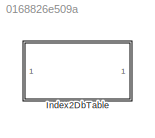
MODEL slx_0168826e509a
KIND library
CONFIG AbsTol = auto
CONFIG EnableMultiTasking = off
CONFIG FixedStep = auto
CONFIG MaxStep = auto
CONFIG MinStep = auto
CONFIG RelTol = 1e-3
CONFIG SampleTimeConstraint = Unconstrained
CONFIG SolverName = VariableStepAuto
CONFIG StartTime = 0.0
CONFIG StopTime = 10.0
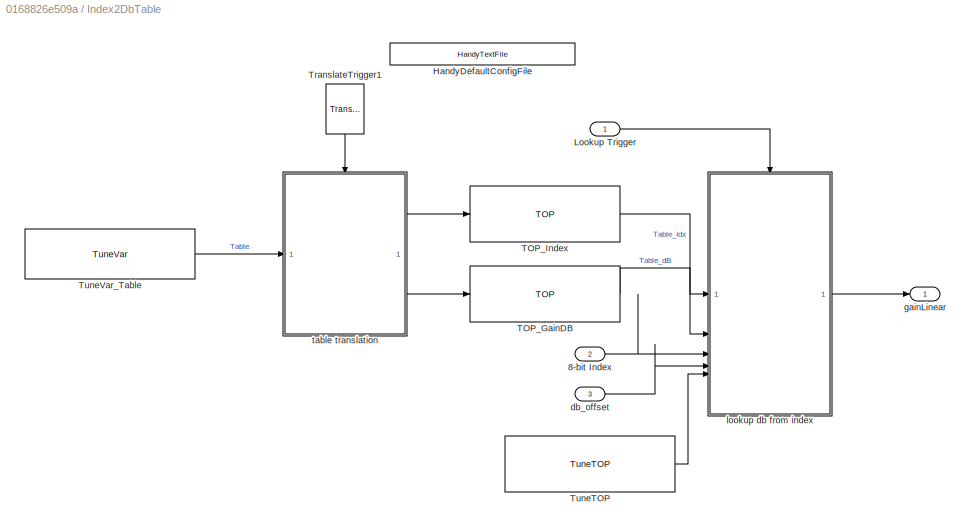
BLOCK [SubSystem] Index2DbTable
BLOCK [Inport] Index2DbTable/8-bit Index
  Port = 2
BLOCK [Reference] Index2DbTable/HandyDefaultConfigFile  REF=HandyTextFile/HandyTextFile
  SourceBlock = HandyTextFile/HandyTextFile
  SourceProductName = Bose Talaria
  SourceType = Talaria Handy Text File
BLOCK [Inport] Index2DbTable/Lookup Trigger
BLOCK [Reference] Index2DbTable/TOP_GainDB  REF=TOP/TOP
  SourceBlock = TOP/TOP
  SourceProductName = Bose Talaria
  SourceType = Talaria Target Overlay Parameter
BLOCK [Reference] Index2DbTable/TOP_Index  REF=TOP/TOP
  SourceBlock = TOP/TOP
  SourceProductName = Bose Talaria
  SourceType = Talaria Target Overlay Parameter
BLOCK [Reference] Index2DbTable/TranslateTrigger1  REF=TuneVar/TranslateTrigger
  NameLocation = left
  SourceBlock = TuneVar/TranslateTrigger
  SourceProductName = Bose Talaria
  SourceType = Talaria Translate Trigger
BLOCK [Reference] Index2DbTable/TuneTOP  REF=TuneVar/TuneTOP
  Description = Variable limits the maximum *dB offset* which will be applied to the gain as part of table lookup. It does *not* directly impact the maximum gain applied, only the maximum dB offset.
  SourceBlock = TuneVar/TuneTOP
  SourceProductName = Bose Talaria
  SourceType = Talaria Trivial Tune TOP
BLOCK [Reference] Index2DbTable/TuneVar_Table  REF=TuneVar/TuneVar
  Description = <HTML>Gain table maps index to gain.\nThe index values are <FONT color="red">normalized</Font> floats between 0 and 1 while the gains are in dB (i.e. 0 implies no attenuation).\n</html>
  SourceBlock = TuneVar/TuneVar
  SourceProductName = Bose Talaria
  SourceType = Talaria Tune Variable
BLOCK [Inport] Index2DbTable/db_offset
  Port = 3
BLOCK [Outport] Index2DbTable/gainLinear
  VectorParamsAs1DForOutWhenUnconnected = off
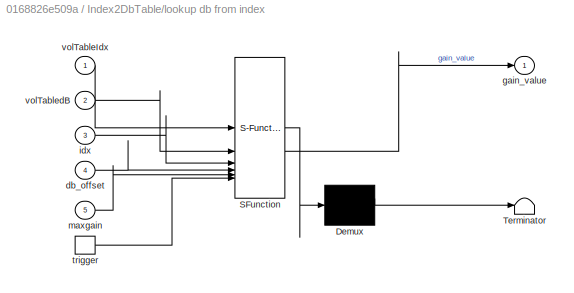
BLOCK [SubSystem] Index2DbTable/lookup db from index
  ErrorFcn = Stateflow.Translate.translate
  PermitHierarchicalResolution = ExplicitOnly
  RTWSystemCode = Reusable function
  SFBlockType = MATLAB Function
  TreatAsAtomicUnit = on
BLOCK [Demux] Index2DbTable/lookup db from index/ Demux 
  Outputs = 1
BLOCK [S-Function] Index2DbTable/lookup db from index/ SFunction 
  EnableBusSupport = off
  FunctionName = sf_sfun
  PortCounts = [6 2]
  SFcnIsStateOwnerBlock = off
  SFunctionDeploymentMode = off
  Tag = Stateflow S-Function 7
BLOCK [Terminator] Index2DbTable/lookup db from index/ Terminator 
BLOCK [Inport] Index2DbTable/lookup db from index/db_offset
  Port = 4
BLOCK [Outport] Index2DbTable/lookup db from index/gain_value
  VectorParamsAs1DForOutWhenUnconnected = off
BLOCK [Inport] Index2DbTable/lookup db from index/idx
  Port = 3
BLOCK [Inport] Index2DbTable/lookup db from index/maxgain
  Port = 5
BLOCK [TriggerPort] Index2DbTable/lookup db from index/trigger
  ShowOutputPort = on
  StatesWhenEnabling = held
  TriggerType = function-call
  VariantControl = Variant
BLOCK [Inport] Index2DbTable/lookup db from index/volTableIdx
BLOCK [Inport] Index2DbTable/lookup db from index/volTabledB
  Port = 2
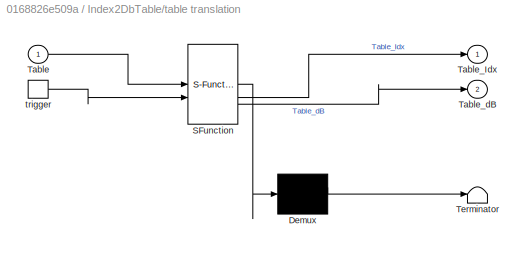
BLOCK [SubSystem] Index2DbTable/table translation
  ErrorFcn = Stateflow.Translate.translate
  PermitHierarchicalResolution = ExplicitOnly
  SFBlockType = MATLAB Function
  TreatAsAtomicUnit = on
BLOCK [Demux] Index2DbTable/table translation/ Demux 
  Outputs = 1
BLOCK [S-Function] Index2DbTable/table translation/ SFunction 
  EnableBusSupport = off
  FunctionName = sf_sfun
  PortCounts = [2 3]
  SFcnIsStateOwnerBlock = off
  SFunctionDeploymentMode = off
  Tag = Stateflow S-Function 8
BLOCK [Terminator] Index2DbTable/table translation/ Terminator 
BLOCK [Inport] Index2DbTable/table translation/Table
BLOCK [Outport] Index2DbTable/table translation/Table_Idx
  VectorParamsAs1DForOutWhenUnconnected = off
BLOCK [Outport] Index2DbTable/table translation/Table_dB
  Port = 2
  VectorParamsAs1DForOutWhenUnconnected = off
BLOCK [TriggerPort] Index2DbTable/table translation/trigger
  ShowOutputPort = on
  StatesWhenEnabling = held
  TriggerType = function-call
  VariantControl = Variant
LINE Index2DbTable/8-bit Index:1 -> Index2DbTable/lookup db from index:3
LINE Index2DbTable/Lookup Trigger:1 -> Index2DbTable/lookup db from index:trigger
LINE Index2DbTable/TOP_GainDB:1 -> Index2DbTable/lookup db from index:2
LINE Index2DbTable/TOP_Index:1 -> Index2DbTable/lookup db from index:1
LINE Index2DbTable/TranslateTrigger1:1 -> Index2DbTable/table translation:trigger
LINE Index2DbTable/TuneTOP:1 -> Index2DbTable/lookup db from index:5
LINE Index2DbTable/TuneVar_Table:1 -> Index2DbTable/table translation:1
LINE Index2DbTable/db_offset:1 -> Index2DbTable/lookup db from index:4
LINE Index2DbTable/lookup db from index:1 -> Index2DbTable/gainLinear:1
LINE Index2DbTable/table translation:1 -> Index2DbTable/TOP_Index:1
LINE Index2DbTable/table translation:2 -> Index2DbTable/TOP_GainDB:1
CHART Index2DbTable/lookup db from index states=1 transitions=1
  STATE_LABEL 'eML_blk_kernel()'
  STATE_LABEL 'SCRIPT:\nfunction gain_value = LookupTheDB(volTableIdx, volTabledB, idx, db_offset, maxgain)\n%#codegen\n%\n% Lookup volume table \n% Output Gain vlue from table\n%\n\nj = uint8(1);\ngain_value = single(0.0);\ninterpolated_gain_dB=single(0.0);\ninterpolated_gain_dB_with_offset=single(0.0);\n\n% workaround to type problem\nidx = cast(idx, class(volTableIdx(end)));\n\n%  bounds checking for vol - clip to max idx\nif...<+1240ch>'
CHART Index2DbTable/table translation states=1 transitions=1
  STATE_LABEL 'eML_blk_kernel()'
  STATE_LABEL "SCRIPT:\nfunction [Table_Idx,Table_dB] = fcn(Table)\n%#codegen\n%\n% Demux table matrix into one dimesional value and index vectors\n%\n%\n% Set up the size and datatype of our TOP outputs:\nmaxTableSize = numel(Table.Value) / 2;\nidxType = 'uint8';\nidxStorageType = 'uint32';\ndbType = 'single';\nTable_Idx = zeros(1,maxTableSize,idxStorageType);\nTable_dB = zeros(1,maxTableSize,dbType);\n\n% separate the pairs ...<+962ch>"
CHART  states=0 transitions=0
CHART  states=0 transitions=0
